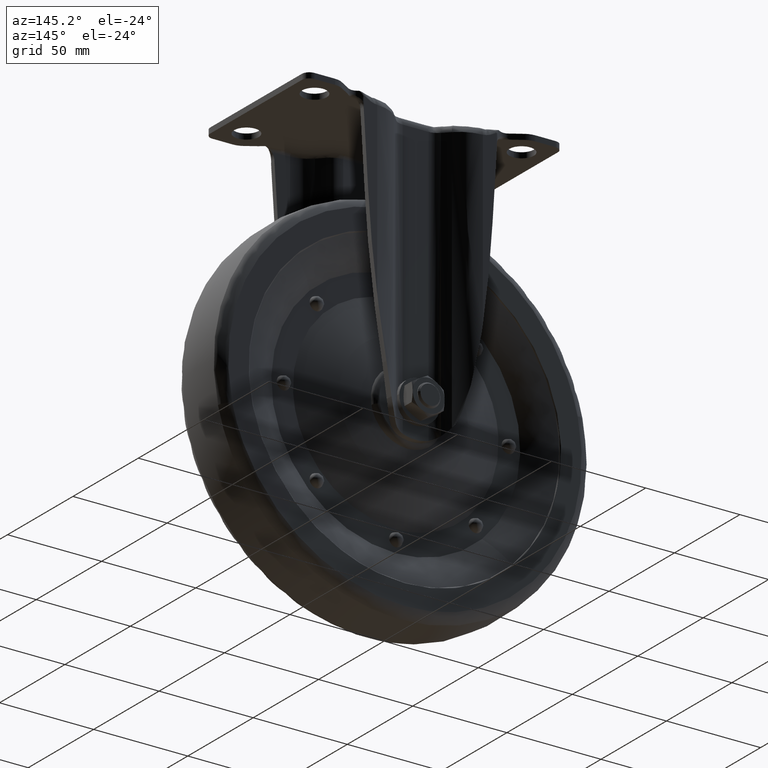
[diagram: clean part render]
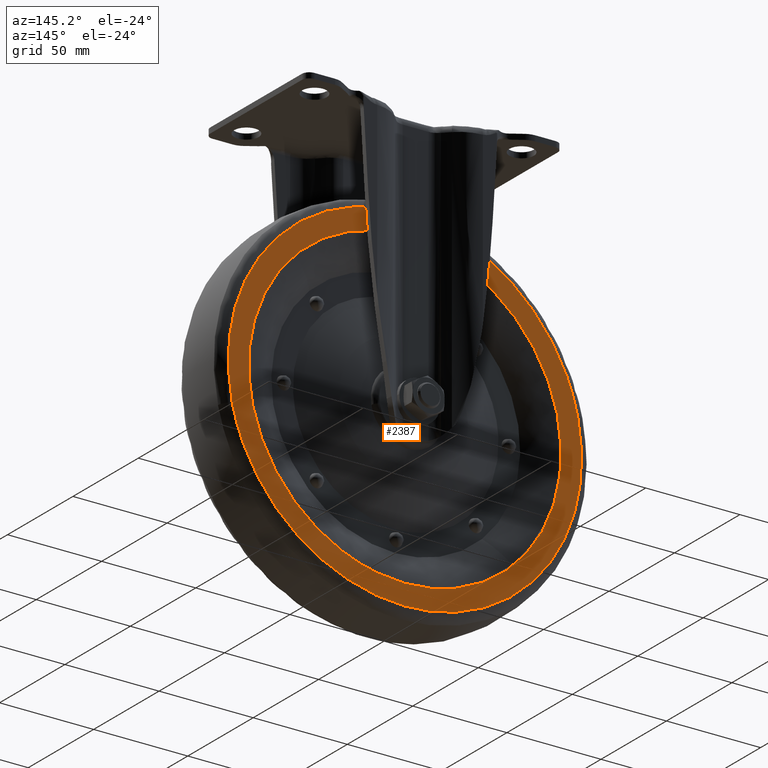
[diagram: same view with one face highlighted and labeled with its STEP entity id]
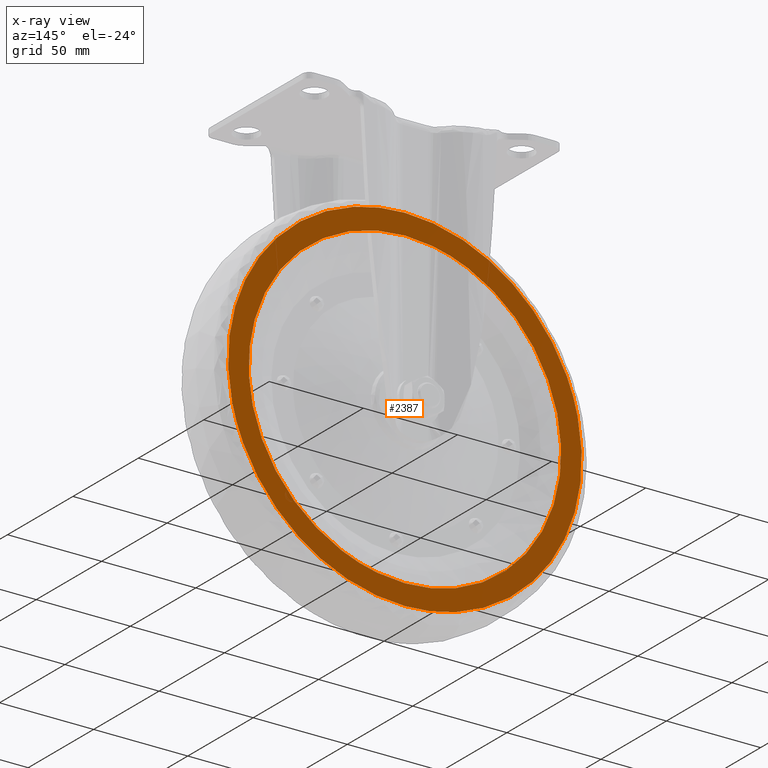
[diagram: x-ray of the same camera — body ghosted, the highlighted face saturated]
A machine part, auxiliary view. The second image highlights one B-rep face of the part: STEP entity #2387.
The next image is the same camera in x-ray: the body ghosted, the highlighted face saturated — about 0% of this face is hidden behind the body in this view.
In plain terms, the highlighted face is a freeform B-spline surface patch.
Its self-contained STEP definition (entity closure, byte-faithful):
#1936=CARTESIAN_POINT('',(33.441234163676228,16.0,-211.965017326235910));
#1937=VERTEX_POINT('',#1936);
#1953=CARTESIAN_POINT('',(0.0,16.0,-219.0));
#1954=VERTEX_POINT('',#1953);
#1955=CARTESIAN_POINT('',(0.0,16.0,-219.0));
#1956=CARTESIAN_POINT('',(17.460586500413811,16.000000000000004,-218.999999999352550));
#1957=CARTESIAN_POINT('',(33.441234163676228,16.000000000000004,-211.965017326235850));
#1965=(BOUNDED_CURVE()B_SPLINE_CURVE(2,(#1955,#1956,#1957),.UNSPECIFIED.,.F.,.U.)B_SPLINE_CURVE_WITH_KNOTS((3,3),(0.0,0.068414990138573),.UNSPECIFIED.)CURVE()GEOMETRIC_REPRESENTATION_ITEM()RATIONAL_B_SPLINE_CURVE((1.0,0.919846853292891,0.883563120518122))REPRESENTATION_ITEM(''));
#1966=EDGE_CURVE('',#1954,#1937,#1965,.T.);
#1968=CARTESIAN_POINT('',(-33.441234163676192,16.0,-60.034982673764141));
#1969=VERTEX_POINT('',#1968);
#1970=CARTESIAN_POINT('',(-33.441234163676192,16.0,-60.034982673764141));
#1971=CARTESIAN_POINT('',(-38.701258176272582,16.0,-62.349663966687991));
#1972=CARTESIAN_POINT('',(-47.192967951771742,15.999999999999980,-67.196819400374309));
#1973=CARTESIAN_POINT('',(-56.615965494677212,16.000000000000050,-75.042904394427310));
#1974=CARTESIAN_POINT('',(-63.724136771530603,15.999999999999931,-82.531861105401731));
#1975=CARTESIAN_POINT('',(-70.471641475898366,16.000000000000050,-91.503304545207726));
#1976=CARTESIAN_POINT('',(-75.462341217162688,15.999999999999980,-100.911970597372800));
#1977=CARTESIAN_POINT('',(-78.937249467974652,16.0,-110.001509278028190));
#1978=CARTESIAN_POINT('',(-81.199702829521442,16.000000000000021,-117.949193637654010));
#1979=CARTESIAN_POINT('',(-82.970787692337780,15.999999999999931,-128.729207942367000));
#1980=CARTESIAN_POINT('',(-83.175884094586152,16.000000000000210,-139.520550934062500));
#1981=CARTESIAN_POINT('',(-82.016158258090087,15.999999999999661,-149.634599131594310));
#1982=CARTESIAN_POINT('',(-80.313756023376939,15.999999999999790,-157.417815394425990));
#1983=CARTESIAN_POINT('',(-77.447606843025682,15.999999999999931,-166.411296941109100));
#1984=CARTESIAN_POINT('',(-73.088902222648514,16.000000000000512,-175.956434276600310));
#1985=CARTESIAN_POINT('',(-67.145958462422996,15.999999999999140,-185.129843579931110));
#1986=CARTESIAN_POINT('',(-60.345824017935271,16.000000000001350,-193.291113072319490));
#1987=CARTESIAN_POINT('',(-53.666704629892592,15.999999999999581,-199.558861437776100));
#1988=CARTESIAN_POINT('',(-46.445622805099880,15.999999999999959,-204.925093115522200));
#1989=CARTESIAN_POINT('',(-38.515575379360669,15.999999999999959,-209.771827159505790));
#1990=CARTESIAN_POINT('',(-29.083764107584109,16.000000000000359,-214.022575102268600));
#1991=CARTESIAN_POINT('',(-19.449709031392100,15.999999999999330,-216.844194152462710));
#1992=CARTESIAN_POINT('',(-10.019891052794730,16.000000000001538,-218.570683332175410));
#1993=CARTESIAN_POINT('',(-3.831164770514649,15.999999999998160,-219.000186607008200));
#1994=CARTESIAN_POINT('',(0.0,16.0,-219.0));
#1995=B_SPLINE_CURVE_WITH_KNOTS('',3,(#1970,#1971,#1972,#1973,#1974,#1975,#1976,#1977,#1978,#1979,#1980,#1981,#1982,#1983,#1984,#1985,#1986,#1987,#1988,#1989,#1990,#1991,#1992,#1993,#1994),.UNSPECIFIED.,.F.,.U.,(4,1,1,1,1,1,1,1,1,1,1,1,1,1,1,1,1,1,1,1,1,1,4),(0.000000184073883,17.240223900228930,29.175763477781999,36.690750998679732,48.184216989614697,62.772109909459061,68.518881441666224,77.360003221857511,87.527390194994126,101.230948168438000,109.629972264488200,118.029194512804390,125.102114564811400,137.921705522541600,149.415247347860000,157.814342521447000,169.749887939794090,176.822797062418690,184.779893920943410,197.599546079276990,207.766797436956010,214.839693954959500,226.333168638696410),.UNSPECIFIED.);
#1996=EDGE_CURVE('',#1969,#1954,#1995,.T.);
#2061=CARTESIAN_POINT('',(0.0,16.0,-53.000000000000007));
#2062=VERTEX_POINT('',#2061);
#2063=CARTESIAN_POINT('',(0.0,16.0,-53.000000000000007));
#2064=CARTESIAN_POINT('',(-17.460586500413790,16.000000000000004,-53.000000000647468));
#2065=CARTESIAN_POINT('',(-33.441234163676192,16.000000000000004,-60.034982673764134));
#2073=(BOUNDED_CURVE()B_SPLINE_CURVE(2,(#2063,#2064,#2065),.UNSPECIFIED.,.F.,.U.)B_SPLINE_CURVE_WITH_KNOTS((3,3),(0.500000000000000,0.568414990138573),.UNSPECIFIED.)CURVE()GEOMETRIC_REPRESENTATION_ITEM()RATIONAL_B_SPLINE_CURVE((1.0,0.919846853292891,0.883563120518122))REPRESENTATION_ITEM(''));
#2074=EDGE_CURVE('',#2062,#1969,#2073,.T.);
#2076=CARTESIAN_POINT('',(33.441234163676228,16.0,-211.965017326235910));
#2077=CARTESIAN_POINT('',(37.352346956583261,16.000000000000021,-210.243546189875300));
#2078=CARTESIAN_POINT('',(45.168309251152337,15.999999999999950,-206.055008849486710));
#2079=CARTESIAN_POINT('',(55.160414277124318,16.000000000000050,-198.432427715223100));
#2080=CARTESIAN_POINT('',(62.561896207602608,16.0,-190.798465677756100));
#2081=CARTESIAN_POINT('',(68.264563604760269,16.000000000000011,-183.462631503284910));
#2082=CARTESIAN_POINT('',(72.417385158689612,15.999999999999989,-176.832820369465310));
#2083=CARTESIAN_POINT('',(76.091469343281020,15.999999999999989,-169.436791302405110));
#2084=CARTESIAN_POINT('',(79.510989695025913,16.000000000000089,-160.635034038302110));
#2085=CARTESIAN_POINT('',(81.725005598222538,15.999999999999840,-151.589205328639200));
#2086=CARTESIAN_POINT('',(82.881275840625150,16.000000000000071,-142.223227439312610));
#2087=CARTESIAN_POINT('',(83.172461222491918,16.000000000000071,-133.226781902487490));
#2088=CARTESIAN_POINT('',(82.268445031091446,15.999999999999540,-123.518450117902110));
#2089=CARTESIAN_POINT('',(79.809651983649616,15.999999999999901,-112.275949466792200));
#2090=CARTESIAN_POINT('',(75.841943958724571,16.000000000000181,-101.444509394708310));
#2091=CARTESIAN_POINT('',(70.377498286380330,15.999999999999750,-91.636227362321705));
#2092=CARTESIAN_POINT('',(64.505243277311692,16.000000000000469,-83.504672132034884));
#2093=CARTESIAN_POINT('',(57.181566077128110,15.999999999998820,-75.396046065308383));
#2094=CARTESIAN_POINT('',(48.585800591624093,16.000000000000501,-68.382306528914100));
#2095=CARTESIAN_POINT('',(40.025937186088854,15.999999999999970,-63.151554873206393));
#2096=CARTESIAN_POINT('',(32.740001093170662,15.999999999999901,-59.583565845972871));
#2097=CARTESIAN_POINT('',(24.720601604461720,16.000000000000391,-56.593917830668737));
#2098=CARTESIAN_POINT('',(13.703491092313410,15.999999999998300,-53.808097793709322));
#2099=CARTESIAN_POINT('',(5.304709110940227,16.000000000003649,-52.999322783531063));
#2100=CARTESIAN_POINT('',(0.0,16.0,-53.000000000000007));
#2101=B_SPLINE_CURVE_WITH_KNOTS('',3,(#2076,#2077,#2078,#2079,#2080,#2081,#2082,#2083,#2084,#2085,#2086,#2087,#2088,#2089,#2090,#2091,#2092,#2093,#2094,#2095,#2096,#2097,#2098,#2099,#2100),.UNSPECIFIED.,.F.,.U.,(4,1,1,1,1,1,1,1,1,1,1,1,1,1,1,1,1,1,1,1,1,1,4),(0.000000181508454,12.819597437617521,26.523408189173129,37.574856322301713,44.647763498463057,54.373086783791791,61.003881244813670,69.403050008743861,82.664782610525776,88.853575695913577,97.694572625358830,109.629972263188510,118.029194511599700,132.175011503978200,144.110571885306600,151.625514837297090,162.234916539017010,176.822797061873100,184.779893920487690,192.294883902800000,201.135948374169000,210.419205692726790,226.333168638697710),.UNSPECIFIED.);
#2102=EDGE_CURVE('',#1937,#2062,#2101,.T.);
#2310=CARTESIAN_POINT('',(-103.237791998450010,16.0,-32.731737841349357));
#2311=CARTESIAN_POINT('',(-103.237791998450010,16.0,-239.268267195237000));
#2312=CARTESIAN_POINT('',(103.237795354096090,16.0,-32.731737841349357));
#2313=CARTESIAN_POINT('',(103.237795354096090,16.0,-239.268267195237000));
#2314=B_SPLINE_SURFACE_WITH_KNOTS('',1,1,((#2310,#2312),(#2311,#2313)),.UNSPECIFIED.,.F.,.F.,.U.,(2,2),(2,2),(0.0,206.536529353887690),(0.0,206.475587352546110),.UNSPECIFIED.);
#2315=CARTESIAN_POINT('',(-91.754506017221672,16.0,-116.094912363795100));
#2316=VERTEX_POINT('',#2315);
#2317=CARTESIAN_POINT('',(0.0,16.0,-229.888774000000010));
#2318=VERTEX_POINT('',#2317);
#2319=CARTESIAN_POINT('',(-91.754506017221672,16.000000000000007,-116.094912363795030));
#2320=CARTESIAN_POINT('',(-93.888774025127603,15.999999999999998,-125.933035684922690));
#2321=CARTESIAN_POINT('',(-93.888774023719606,16.0,-135.999999994854310));
#2322=CARTESIAN_POINT('',(-93.888774010588165,16.0,-229.888773997703080));
#2323=CARTESIAN_POINT('',(0.0,16.0,-229.888774000000010));
#2331=(BOUNDED_CURVE()B_SPLINE_CURVE(2,(#2319,#2320,#2321,#2322,#2323),.UNSPECIFIED.,.F.,.U.)B_SPLINE_CURVE_WITH_KNOTS((3,2,3),(0.713703258528108,0.750000000000000,1.0),.UNSPECIFIED.)CURVE()GEOMETRIC_REPRESENTATION_ITEM()RATIONAL_B_SPLINE_CURVE((0.927299386194419,0.957475722231431,1.0,0.707106781186547,1.0))REPRESENTATION_ITEM(''));
#2332=EDGE_CURVE('',#2316,#2318,#2331,.T.);
#2333=ORIENTED_EDGE('',*,*,#2332,.F.);
#2334=CARTESIAN_POINT('',(0.0,16.0,-42.111226000000023));
#2335=VERTEX_POINT('',#2334);
#2336=CARTESIAN_POINT('',(0.0,16.0,-42.111226000000023));
#2337=CARTESIAN_POINT('',(-75.704593855276059,16.000000000000004,-42.111225997151301));
#2338=CARTESIAN_POINT('',(-91.754506017221672,16.000000000000007,-116.094912363795030));
#2346=(BOUNDED_CURVE()B_SPLINE_CURVE(2,(#2336,#2337,#2338),.UNSPECIFIED.,.F.,.U.)B_SPLINE_CURVE_WITH_KNOTS((3,3),(0.500000000000000,0.713703258528108),.UNSPECIFIED.)CURVE()GEOMETRIC_REPRESENTATION_ITEM()RATIONAL_B_SPLINE_CURVE((1.0,0.749631058955117,0.927299386194419))REPRESENTATION_ITEM(''));
#2347=EDGE_CURVE('',#2335,#2316,#2346,.T.);
#2348=ORIENTED_EDGE('',*,*,#2347,.F.);
#2349=CARTESIAN_POINT('',(91.754506017221672,16.0,-155.905087636204910));
#2350=VERTEX_POINT('',#2349);
#2351=CARTESIAN_POINT('',(91.754506017221672,16.000000000000004,-155.905087636204970));
#2352=CARTESIAN_POINT('',(93.888774025127574,15.999999999999996,-146.066964315077340));
#2353=CARTESIAN_POINT('',(93.888774023719591,16.0,-136.000000005145690));
#2354=CARTESIAN_POINT('',(93.888774010588136,16.0,-42.111226002297009));
#2355=CARTESIAN_POINT('',(0.0,16.0,-42.111226000000023));
#2363=(BOUNDED_CURVE()B_SPLINE_CURVE(2,(#2351,#2352,#2353,#2354,#2355),.UNSPECIFIED.,.F.,.U.)B_SPLINE_CURVE_WITH_KNOTS((3,2,3),(0.213703258528108,0.250000000000000,0.500000000000000),.UNSPECIFIED.)CURVE()GEOMETRIC_REPRESENTATION_ITEM()RATIONAL_B_SPLINE_CURVE((0.927299386194419,0.957475722231431,1.0,0.707106781186547,1.0))REPRESENTATION_ITEM(''));
#2364=EDGE_CURVE('',#2350,#2335,#2363,.T.);
#2365=ORIENTED_EDGE('',*,*,#2364,.F.);
#2366=CARTESIAN_POINT('',(0.0,16.0,-229.888774000000010));
#2367=CARTESIAN_POINT('',(75.704593855276059,16.000000000000004,-229.888774002848720));
#2368=CARTESIAN_POINT('',(91.754506017221672,16.000000000000007,-155.905087636204970));
#2376=(BOUNDED_CURVE()B_SPLINE_CURVE(2,(#2366,#2367,#2368),.UNSPECIFIED.,.F.,.U.)B_SPLINE_CURVE_WITH_KNOTS((3,3),(0.0,0.213703258528108),.UNSPECIFIED.)CURVE()GEOMETRIC_REPRESENTATION_ITEM()RATIONAL_B_SPLINE_CURVE((1.0,0.749631058955117,0.927299386194419))REPRESENTATION_ITEM(''));
#2377=EDGE_CURVE('',#2318,#2350,#2376,.T.);
#2378=ORIENTED_EDGE('',*,*,#2377,.F.);
#2379=EDGE_LOOP('',(#2333,#2348,#2365,#2378));
#2380=FACE_OUTER_BOUND('',#2379,.T.);
#2381=ORIENTED_EDGE('',*,*,#1966,.T.);
#2382=ORIENTED_EDGE('',*,*,#2102,.T.);
#2383=ORIENTED_EDGE('',*,*,#2074,.T.);
#2384=ORIENTED_EDGE('',*,*,#1996,.T.);
#2385=EDGE_LOOP('',(#2381,#2382,#2383,#2384));
#2386=FACE_BOUND('',#2385,.T.);
#2387=ADVANCED_FACE('',(#2380,#2386),#2314,.F.);